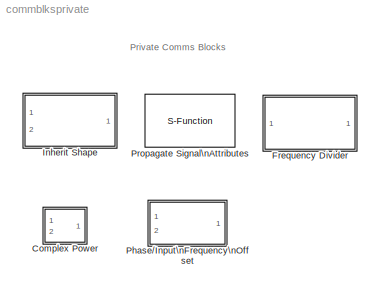
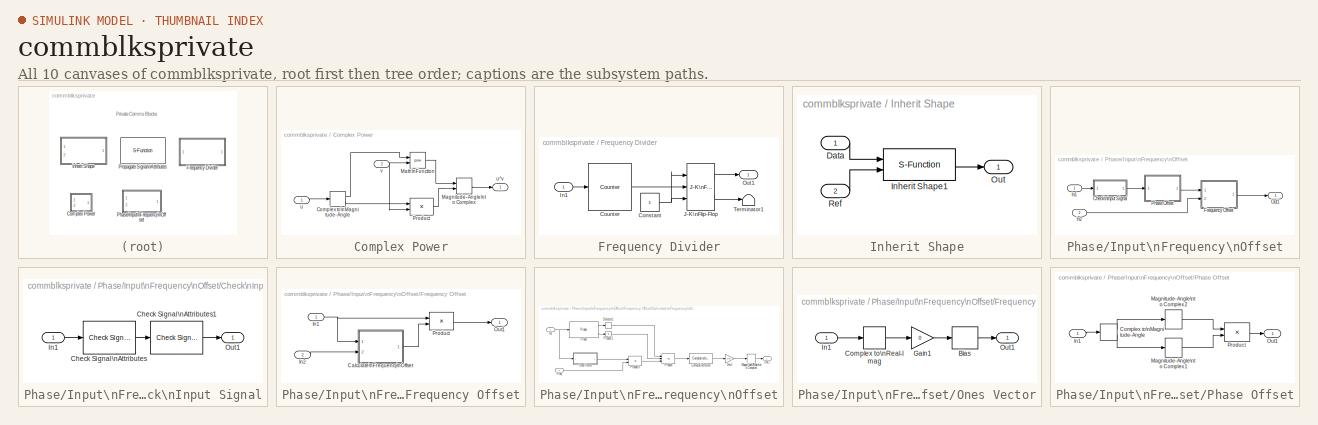
[diagram: thumbnail index - all 10 canvases of the model, root first then tree order]
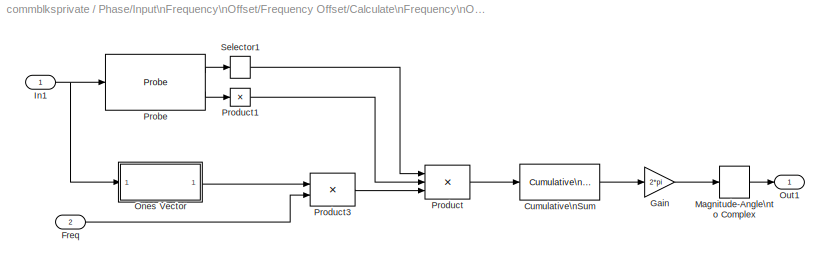
MODEL commblksprivate
KIND library
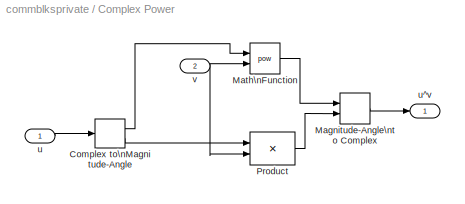
BLOCK [SubSystem] Complex Power
  MaskDescription = Raise the input U to the power V.
  MaskIconFrame = on
  MaskIconOpaque = on
  MaskIconRotate = none
  MaskIconUnits = autoscale
  MaskType = Complex Power
  Ports = [2, 1]
  TreatAsAtomicUnit = off
BLOCK [ComplexToMagnitudeAngle] Complex Power/Complex to\nMagnitude-Angle
  Output = Magnitude and angle
  Ports = [1, 2]
BLOCK [MagnitudeAngleToComplex] Complex Power/Magnitude-Angle\nto Complex
  Input = Magnitude and angle
  Ports = [2, 1]
BLOCK [Math] Complex Power/Math\nFunction
  Operator = pow
  OutputSignalType = real
  Ports = [2, 1]
BLOCK [Product] Complex Power/Product
  Ports = [2, 1]
  RndMeth = Floor
BLOCK [Inport] Complex Power/u
  IconDisplay = Port number
BLOCK [Outport] Complex Power/u^v
  BusOutputAsStruct = off
  IconDisplay = Port number
BLOCK [Inport] Complex Power/v
  IconDisplay = Port number
  Port = 2
BLOCK [SubSystem] Frequency Divider
  MaskDescription = Divide frequency of input square wave by an integer.
  MaskDisplay = disp(['Divide Frequency\\nby ' get_param(gcb, 'n')])
  MaskEnableString = on
  MaskHelp = Enter an integer by which you want to divide the input frequency.
  MaskIconFrame = on
  MaskIconOpaque = on
  MaskIconRotate = none
  MaskIconUnits = autoscale
  MaskPromptString = Divide frequency by
  MaskStyleString = edit
  MaskToolTipString = on
  MaskTunableValueString = on
  MaskType = Frequency Divider
  MaskValueString = 2
  MaskVariables = n=@1;
  MaskVisibilityString = on
  Ports = [1, 1]
  TreatAsAtomicUnit = off
BLOCK [Constant] Frequency Divider/Constant
BLOCK [Reference] Frequency Divider/Counter  REF=dspswit3/Counter
  CountEvent = Either edge
  CounterSize = User defined
  Direction = Up
  HitValue = n-1
  InitialCount = 0
  MaxCount = n-1
  Output = Hit
  Ports = [1, 1]
  ResetInput = off
  SamplesPerFrame = 1
  SourceBlock = dspswit3/Counter
  SourceType = Counter
  Ts = 1
BLOCK [Inport] Frequency Divider/In1
  IconDisplay = Port number
BLOCK [Reference] Frequency Divider/J-K\nFlip-Flop  REF=simulink_extras/Flip Flops/J-K\nFlip-Flop
  Ports = [3, 2]
  SourceBlock = simulink_extras/Flip Flops/J-K\nFlip-Flop
  SourceType = JKFlipFlop
  initial_condition = 0
BLOCK [Outport] Frequency Divider/Out1
  BusOutputAsStruct = off
  IconDisplay = Port number
BLOCK [Terminator] Frequency Divider/Terminator1
BLOCK [SubSystem] Inherit Shape
  MaskDescription = Reshape Data input signal using the Reference signal. Output signal has the same number of elements as Data input, and has the same shape as Reference input.\n
  MaskDisplay = text(.9,0.5,'Inherit\\nShape','horiz','right');
  MaskIconFrame = on
  MaskIconOpaque = off
  MaskIconRotate = none
  MaskIconUnits = normalized
  MaskType = Inherit Shape
  Ports = [2, 1]
  TreatAsAtomicUnit = off
BLOCK [Inport] Inherit Shape/Data
  IconDisplay = Port number
BLOCK [S-Function] Inherit Shape/Inherit Shape1
  FunctionName = scominhshape
  Ports = [2, 1]
BLOCK [Outport] Inherit Shape/Out
  BusOutputAsStruct = off
  IconDisplay = Port number
BLOCK [Inport] Inherit Shape/Ref
  IconDisplay = Port number
  Port = 2
BLOCK [SubSystem] Phase//Input\nFrequency\nOffset
  MaskDescription = Complex baseband model of residual phase and input frequency offsets.
  MaskDisplay = disp('Phase/\\nInput Freq\\nOffset');
  MaskEnableString = on
  MaskIconFrame = on
  MaskIconOpaque = on
  MaskIconRotate = none
  MaskIconUnits = autoscale
  MaskPromptString = Phase offset (deg):
  MaskSelfModifiable = on
  MaskStyleString = edit
  MaskToolTipString = on
  MaskTunableValueString = on
  MaskType = Phase/Input Frequency Offset
  MaskValueString = 0
  MaskVariables = phaseOffset=@1;
  MaskVisibilityString = on
  Ports = [2, 1]
  TreatAsAtomicUnit = off
BLOCK [SubSystem] Phase//Input\nFrequency\nOffset/Check\nInput Signal
  MaskDisplay = disp('Check\\nInput Signal');
  MaskIconFrame = on
  MaskIconOpaque = on
  MaskIconRotate = none
  MaskIconUnits = autoscale
  Ports = [1, 1]
  TreatAsAtomicUnit = off
BLOCK [Reference] Phase//Input\nFrequency\nOffset/Check\nInput Signal/Check Signal\nAttributes  REF=dspsigattribs/Check Signal\nAttributes
  Complexity = Complex
  DatatypeCheckMethod = Ignore
  DatatypeGeneral = Boolean
  Dimensions = Column vector (2-D) or scalar
  DimsCheckMethod = Is...
  DtypeFixedSpecific = Any fixed-point
  DtypeFloatSpecific = Any floating-point
  DtypeIntSpecific = Any integer
  Frame = Ignore
  Ports = [1, 1]
  SampleMode = Ignore
  ShowPortLabels = on
  SigAttribCheckMethod = Does not match attributes exactly
  SourceBlock = dspsigattribs/Check Signal\nAttributes
  SourceType = Check Signal Attributes
BLOCK [Reference] Phase//Input\nFrequency\nOffset/Check\nInput Signal/Check Signal\nAttributes1  REF=dspsigattribs/Check Signal\nAttributes
  Complexity = Ignore
  DatatypeCheckMethod = Ignore
  DatatypeGeneral = Boolean
  Dimensions = Vector (1-D or 2-D)
  DimsCheckMethod = Is...
  DtypeFixedSpecific = Any fixed-point
  DtypeFloatSpecific = Any floating-point
  DtypeIntSpecific = Any integer
  Frame = Sample-based
  Ports = [1, 1]
  SampleMode = Ignore
  ShowPortLabels = on
  SigAttribCheckMethod = Matches attributes exactly
  SourceBlock = dspsigattribs/Check Signal\nAttributes
  SourceType = Check Signal Attributes
BLOCK [Inport] Phase//Input\nFrequency\nOffset/Check\nInput Signal/In1
  IconDisplay = Port number
BLOCK [Outport] Phase//Input\nFrequency\nOffset/Check\nInput Signal/Out1
  BusOutputAsStruct = off
  IconDisplay = Port number
BLOCK [SubSystem] Phase//Input\nFrequency\nOffset/Frequency Offset
  MaskDisplay = disp('Frequency\\nOffset');
  MaskIconFrame = on
  MaskIconOpaque = on
  MaskIconRotate = none
  MaskIconUnits = autoscale
  Ports = [2, 1]
  TreatAsAtomicUnit = off
BLOCK [SubSystem] Phase//Input\nFrequency\nOffset/Frequency Offset/Calculate\nFrequency\nOffset
  MaskDisplay = disp('Calculate\\nFrequency\\nOffset');
  MaskIconFrame = on
  MaskIconOpaque = on
  MaskIconRotate = none
  MaskIconUnits = autoscale
  Ports = [2, 1]
  TreatAsAtomicUnit = off
BLOCK [Reference] Phase//Input\nFrequency\nOffset/Frequency Offset/Calculate\nFrequency\nOffset/Cumulative\nSum  REF=dspmathops/Cumulative\nSum
  Ports = [1, 1]
  SourceBlock = dspmathops/Cumulative\nSum
  SourceType = Cumulative Sum
  dim = Channels (running sum)
  reset_popup = None
BLOCK [Inport] Phase//Input\nFrequency\nOffset/Frequency Offset/Calculate\nFrequency\nOffset/Freq
  IconDisplay = Port number
  Port = 2
BLOCK [Gain] Phase//Input\nFrequency\nOffset/Frequency Offset/Calculate\nFrequency\nOffset/Gain
  Gain = 2*pi
BLOCK [Inport] Phase//Input\nFrequency\nOffset/Frequency Offset/Calculate\nFrequency\nOffset/In1
  IconDisplay = Port number
BLOCK [MagnitudeAngleToComplex] Phase//Input\nFrequency\nOffset/Frequency Offset/Calculate\nFrequency\nOffset/Magnitude-Angle\nto Complex
  ConstantPart = 1
  Input = Angle
  Ports = [1, 1]
BLOCK [SubSystem] Phase//Input\nFrequency\nOffset/Frequency Offset/Calculate\nFrequency\nOffset/Ones Vector
  MaskDescription = Create a vector of equals whose length is equal to input portwidth.
  MaskDisplay = disp('Ones(1:length)')
  MaskIconFrame = on
  MaskIconOpaque = on
  MaskIconRotate = none
  MaskIconUnits = autoscale
  MaskType = Ones Vector
  Ports = [1, 1]
  TreatAsAtomicUnit = off
BLOCK [Bias] Phase//Input\nFrequency\nOffset/Frequency Offset/Calculate\nFrequency\nOffset/Ones Vector/Bias
  Bias = 1
  SaturateOnIntegerOverflow = off
BLOCK [ComplexToRealImag] Phase//Input\nFrequency\nOffset/Frequency Offset/Calculate\nFrequency\nOffset/Ones Vector/Complex to\nReal-Imag
  Output = Real
  Ports = [1, 1]
BLOCK [Gain] Phase//Input\nFrequency\nOffset/Frequency Offset/Calculate\nFrequency\nOffset/Ones Vector/Gain1
  Gain = 0
  OutDataTypeMode = Inherit via internal rule
  ParameterDataTypeMode = Inherit via internal rule
  SaturateOnIntegerOverflow = off
BLOCK [Inport] Phase//Input\nFrequency\nOffset/Frequency Offset/Calculate\nFrequency\nOffset/Ones Vector/In1
  IconDisplay = Port number
BLOCK [Outport] Phase//Input\nFrequency\nOffset/Frequency Offset/Calculate\nFrequency\nOffset/Ones Vector/Out1
  BusOutputAsStruct = off
  IconDisplay = Port number
BLOCK [Outport] Phase//Input\nFrequency\nOffset/Frequency Offset/Calculate\nFrequency\nOffset/Out1
  BusOutputAsStruct = off
  IconDisplay = Port number
BLOCK [Probe] Phase//Input\nFrequency\nOffset/Frequency Offset/Calculate\nFrequency\nOffset/Probe
  Ports = [1, 2]
  ProbeComplexSignal = off
  ProbeSignalDimensions = on
  ProbeWidth = off
BLOCK [Product] Phase//Input\nFrequency\nOffset/Frequency Offset/Calculate\nFrequency\nOffset/Product
  Inputs = */*
  Ports = [3, 1]
  RndMeth = Floor
BLOCK [Product] Phase//Input\nFrequency\nOffset/Frequency Offset/Calculate\nFrequency\nOffset/Product1
  Inputs = 1
  Ports = [1, 1]
  RndMeth = Floor
BLOCK [Product] Phase//Input\nFrequency\nOffset/Frequency Offset/Calculate\nFrequency\nOffset/Product3
  InputSameDT = off
  Inputs = **
  Ports = [2, 1]
  RndMeth = Floor
BLOCK [Selector] Phase//Input\nFrequency\nOffset/Frequency Offset/Calculate\nFrequency\nOffset/Selector1
  Elements = [1 ]
  InputPortWidth = 2
  Ports = [1, 1]
BLOCK [Inport] Phase//Input\nFrequency\nOffset/Frequency Offset/In1
  IconDisplay = Port number
BLOCK [Inport] Phase//Input\nFrequency\nOffset/Frequency Offset/In2
  IconDisplay = Port number
  Port = 2
BLOCK [Outport] Phase//Input\nFrequency\nOffset/Frequency Offset/Out1
  BusOutputAsStruct = off
  IconDisplay = Port number
BLOCK [Product] Phase//Input\nFrequency\nOffset/Frequency Offset/Product
  Ports = [2, 1]
  RndMeth = Floor
BLOCK [Inport] Phase//Input\nFrequency\nOffset/In1
  IconDisplay = Port number
BLOCK [Inport] Phase//Input\nFrequency\nOffset/In2
  IconDisplay = Port number
  Port = 2
BLOCK [Outport] Phase//Input\nFrequency\nOffset/Out1
  BusOutputAsStruct = off
  IconDisplay = Port number
BLOCK [SubSystem] Phase//Input\nFrequency\nOffset/Phase Offset
  MaskDisplay = disp('Phase\\nOffset');
  MaskIconFrame = on
  MaskIconOpaque = on
  MaskIconRotate = none
  MaskIconUnits = autoscale
  Ports = [1, 1]
  TreatAsAtomicUnit = off
BLOCK [ComplexToMagnitudeAngle] Phase//Input\nFrequency\nOffset/Phase Offset/Complex to\nMagnitude-Angle
  Output = Magnitude and angle
  Ports = [1, 2]
BLOCK [Inport] Phase//Input\nFrequency\nOffset/Phase Offset/In1
  IconDisplay = Port number
BLOCK [MagnitudeAngleToComplex] Phase//Input\nFrequency\nOffset/Phase Offset/Magnitude-Angle\nto Complex1
  ConstantPart = 1
  Input = Angle
  Ports = [1, 1]
BLOCK [MagnitudeAngleToComplex] Phase//Input\nFrequency\nOffset/Phase Offset/Magnitude-Angle\nto Complex2
  ConstantPart = phaseOffset*pi/180
  Input = Magnitude
  Ports = [1, 1]
BLOCK [Outport] Phase//Input\nFrequency\nOffset/Phase Offset/Out1
  BusOutputAsStruct = off
  IconDisplay = Port number
BLOCK [Product] Phase//Input\nFrequency\nOffset/Phase Offset/Product
  Ports = [2, 1]
  RndMeth = Floor
BLOCK [S-Function] Propagate Signal\nAttributes
  FunctionName = scompropattrib
  MaskDescription = Propagate signal dimensions, sample time and complexity from port 1 to port 2.
  MaskDisplay = disp('Propagate Signal\\n Attributes')
  MaskIconFrame = on
  MaskIconOpaque = on
  MaskIconRotate = none
  MaskIconUnits = autoscale
  MaskType = Propagate signal attributes
  Ports = [2]
ANNOTATION (root): Private Comms Blocks
LINE Complex Power/Complex to\nMagnitude-Angle:1 -> Complex Power/Math\nFunction:1
LINE Complex Power/Complex to\nMagnitude-Angle:2 -> Complex Power/Product:1
LINE Complex Power/Magnitude-Angle\nto Complex:1 -> Complex Power/u^v:1
LINE Complex Power/Math\nFunction:1 -> Complex Power/Magnitude-Angle\nto Complex:1
LINE Complex Power/Product:1 -> Complex Power/Magnitude-Angle\nto Complex:2
LINE Complex Power/u:1 -> Complex Power/Complex to\nMagnitude-Angle:1
NET Complex Power/v:1 -> Complex Power/Math\nFunction:2, Complex Power/Product:2
NET Frequency Divider/Constant:1 -> Frequency Divider/J-K\nFlip-Flop:1, Frequency Divider/J-K\nFlip-Flop:3
LINE Frequency Divider/Counter:1 -> Frequency Divider/J-K\nFlip-Flop:2
LINE Frequency Divider/In1:1 -> Frequency Divider/Counter:1
LINE Frequency Divider/J-K\nFlip-Flop:1 -> Frequency Divider/Out1:1
LINE Frequency Divider/J-K\nFlip-Flop:2 -> Frequency Divider/Terminator1:1
LINE Inherit Shape/Data:1 -> Inherit Shape/Inherit Shape1:1
LINE Inherit Shape/Inherit Shape1:1 -> Inherit Shape/Out:1
LINE Inherit Shape/Ref:1 -> Inherit Shape/Inherit Shape1:2
LINE Phase//Input\nFrequency\nOffset/Check\nInput Signal/Check Signal\nAttributes1:1 -> Phase//Input\nFrequency\nOffset/Check\nInput Signal/Out1:1
LINE Phase//Input\nFrequency\nOffset/Check\nInput Signal/Check Signal\nAttributes:1 -> Phase//Input\nFrequency\nOffset/Check\nInput Signal/Check Signal\nAttributes1:1
LINE Phase//Input\nFrequency\nOffset/Check\nInput Signal/In1:1 -> Phase//Input\nFrequency\nOffset/Check\nInput Signal/Check Signal\nAttributes:1
LINE Phase//Input\nFrequency\nOffset/Check\nInput Signal:1 -> Phase//Input\nFrequency\nOffset/Phase Offset:1
LINE Phase//Input\nFrequency\nOffset/Frequency Offset/Calculate\nFrequency\nOffset/Cumulative\nSum:1 -> Phase//Input\nFrequency\nOffset/Frequency Offset/Calculate\nFrequency\nOffset/Gain:1
LINE Phase//Input\nFrequency\nOffset/Frequency Offset/Calculate\nFrequency\nOffset/Freq:1 -> Phase//Input\nFrequency\nOffset/Frequency Offset/Calculate\nFrequency\nOffset/Product3:2
LINE Phase//Input\nFrequency\nOffset/Frequency Offset/Calculate\nFrequency\nOffset/Gain:1 -> Phase//Input\nFrequency\nOffset/Frequency Offset/Calculate\nFrequency\nOffset/Magnitude-Angle\nto Complex:1
NET Phase//Input\nFrequency\nOffset/Frequency Offset/Calculate\nFrequency\nOffset/In1:1 -> Phase//Input\nFrequency\nOffset/Frequency Offset/Calculate\nFrequency\nOffset/Ones Vector:1, Phase//Input\nFrequency\nOffset/Frequency Offset/Calculate\nFrequency\nOffset/Probe:1
LINE Phase//Input\nFrequency\nOffset/Frequency Offset/Calculate\nFrequency\nOffset/Magnitude-Angle\nto Complex:1 -> Phase//Input\nFrequency\nOffset/Frequency Offset/Calculate\nFrequency\nOffset/Out1:1
LINE Phase//Input\nFrequency\nOffset/Frequency Offset/Calculate\nFrequency\nOffset/Ones Vector/Bias:1 -> Phase//Input\nFrequency\nOffset/Frequency Offset/Calculate\nFrequency\nOffset/Ones Vector/Out1:1
LINE Phase//Input\nFrequency\nOffset/Frequency Offset/Calculate\nFrequency\nOffset/Ones Vector/Complex to\nReal-Imag:1 -> Phase//Input\nFrequency\nOffset/Frequency Offset/Calculate\nFrequency\nOffset/Ones Vector/Gain1:1
LINE Phase//Input\nFrequency\nOffset/Frequency Offset/Calculate\nFrequency\nOffset/Ones Vector/Gain1:1 -> Phase//Input\nFrequency\nOffset/Frequency Offset/Calculate\nFrequency\nOffset/Ones Vector/Bias:1
LINE Phase//Input\nFrequency\nOffset/Frequency Offset/Calculate\nFrequency\nOffset/Ones Vector/In1:1 -> Phase//Input\nFrequency\nOffset/Frequency Offset/Calculate\nFrequency\nOffset/Ones Vector/Complex to\nReal-Imag:1
LINE Phase//Input\nFrequency\nOffset/Frequency Offset/Calculate\nFrequency\nOffset/Ones Vector:1 -> Phase//Input\nFrequency\nOffset/Frequency Offset/Calculate\nFrequency\nOffset/Product3:1
LINE Phase//Input\nFrequency\nOffset/Frequency Offset/Calculate\nFrequency\nOffset/Probe:1 -> Phase//Input\nFrequency\nOffset/Frequency Offset/Calculate\nFrequency\nOffset/Selector1:1
LINE Phase//Input\nFrequency\nOffset/Frequency Offset/Calculate\nFrequency\nOffset/Probe:2 -> Phase//Input\nFrequency\nOffset/Frequency Offset/Calculate\nFrequency\nOffset/Product1:1
LINE Phase//Input\nFrequency\nOffset/Frequency Offset/Calculate\nFrequency\nOffset/Product1:1 -> Phase//Input\nFrequency\nOffset/Frequency Offset/Calculate\nFrequency\nOffset/Product:2
LINE Phase//Input\nFrequency\nOffset/Frequency Offset/Calculate\nFrequency\nOffset/Product3:1 -> Phase//Input\nFrequency\nOffset/Frequency Offset/Calculate\nFrequency\nOffset/Product:3
LINE Phase//Input\nFrequency\nOffset/Frequency Offset/Calculate\nFrequency\nOffset/Product:1 -> Phase//Input\nFrequency\nOffset/Frequency Offset/Calculate\nFrequency\nOffset/Cumulative\nSum:1
LINE Phase//Input\nFrequency\nOffset/Frequency Offset/Calculate\nFrequency\nOffset/Selector1:1 -> Phase//Input\nFrequency\nOffset/Frequency Offset/Calculate\nFrequency\nOffset/Product:1
LINE Phase//Input\nFrequency\nOffset/Frequency Offset/Calculate\nFrequency\nOffset:1 -> Phase//Input\nFrequency\nOffset/Frequency Offset/Product:2
NET Phase//Input\nFrequency\nOffset/Frequency Offset/In1:1 -> Phase//Input\nFrequency\nOffset/Frequency Offset/Calculate\nFrequency\nOffset:1, Phase//Input\nFrequency\nOffset/Frequency Offset/Product:1
LINE Phase//Input\nFrequency\nOffset/Frequency Offset/In2:1 -> Phase//Input\nFrequency\nOffset/Frequency Offset/Calculate\nFrequency\nOffset:2
LINE Phase//Input\nFrequency\nOffset/Frequency Offset/Product:1 -> Phase//Input\nFrequency\nOffset/Frequency Offset/Out1:1
LINE Phase//Input\nFrequency\nOffset/Frequency Offset:1 -> Phase//Input\nFrequency\nOffset/Out1:1
LINE Phase//Input\nFrequency\nOffset/In1:1 -> Phase//Input\nFrequency\nOffset/Check\nInput Signal:1
LINE Phase//Input\nFrequency\nOffset/In2:1 -> Phase//Input\nFrequency\nOffset/Frequency Offset:2
LINE Phase//Input\nFrequency\nOffset/Phase Offset/Complex to\nMagnitude-Angle:1 -> Phase//Input\nFrequency\nOffset/Phase Offset/Magnitude-Angle\nto Complex2:1
LINE Phase//Input\nFrequency\nOffset/Phase Offset/Complex to\nMagnitude-Angle:2 -> Phase//Input\nFrequency\nOffset/Phase Offset/Magnitude-Angle\nto Complex1:1
LINE Phase//Input\nFrequency\nOffset/Phase Offset/In1:1 -> Phase//Input\nFrequency\nOffset/Phase Offset/Complex to\nMagnitude-Angle:1
LINE Phase//Input\nFrequency\nOffset/Phase Offset/Magnitude-Angle\nto Complex1:1 -> Phase//Input\nFrequency\nOffset/Phase Offset/Product:2
LINE Phase//Input\nFrequency\nOffset/Phase Offset/Magnitude-Angle\nto Complex2:1 -> Phase//Input\nFrequency\nOffset/Phase Offset/Product:1
LINE Phase//Input\nFrequency\nOffset/Phase Offset/Product:1 -> Phase//Input\nFrequency\nOffset/Phase Offset/Out1:1
LINE Phase//Input\nFrequency\nOffset/Phase Offset:1 -> Phase//Input\nFrequency\nOffset/Frequency Offset:1
note: NET lines group one-source signal fan-out (src -> all destinations, sorted); 1:1 wires keep LINE
